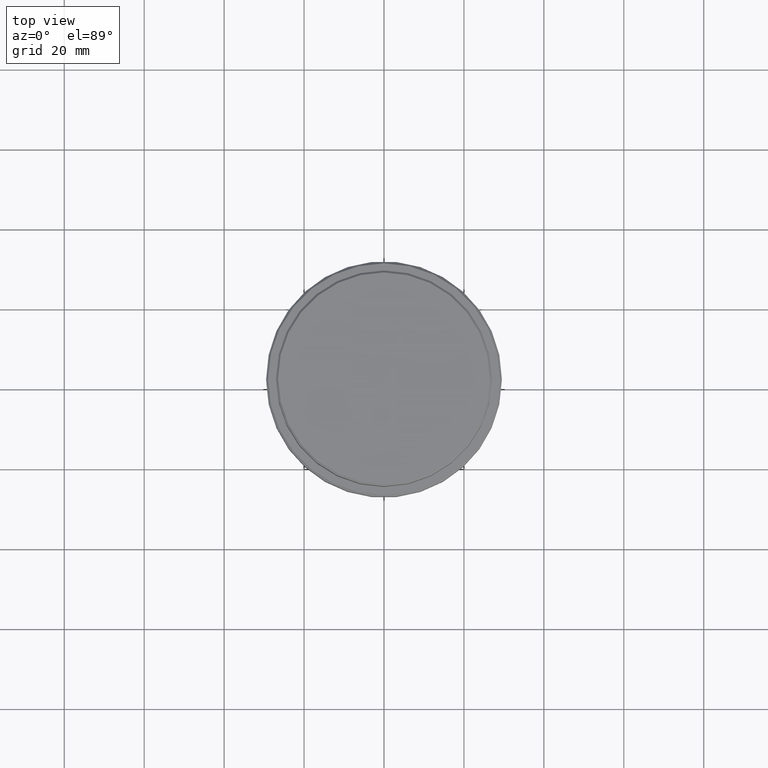
[diagram: clean part render]
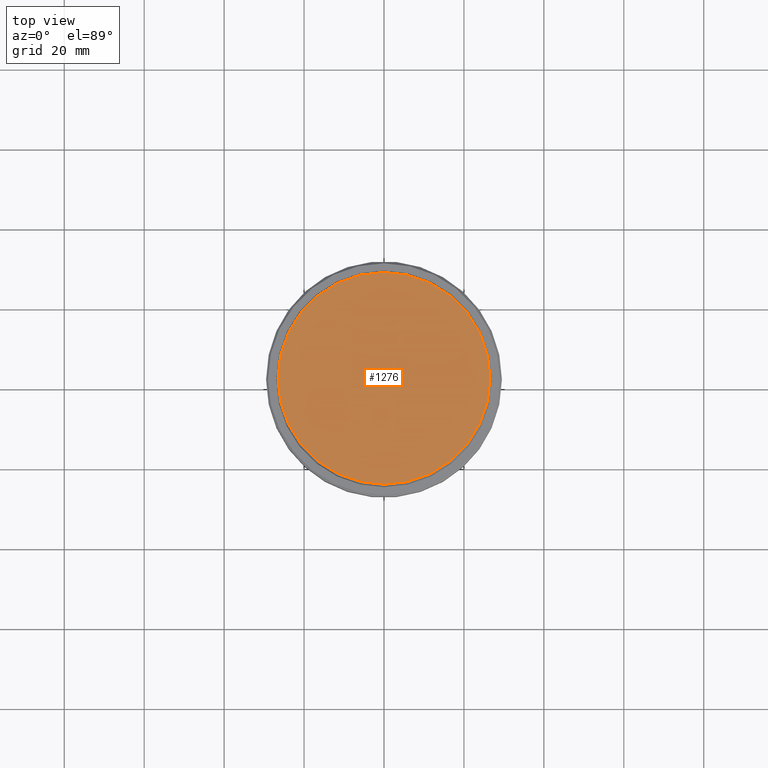
[diagram: same view with one face highlighted and labeled with its STEP entity id]
A machine part, top view. The second image highlights one B-rep face of the part: STEP entity #1276.
In plain terms, the highlighted planar face has unit normal (0, -0, 1).
Its self-contained STEP definition (entity closure, byte-faithful):
#44 = VERTEX_POINT ( 'NONE', #1341 ) ;
#108 = ORIENTED_EDGE ( 'NONE', *, *, #992, .T. ) ;
#148 = VERTEX_POINT ( 'NONE', #694 ) ;
#171 = AXIS2_PLACEMENT_3D ( 'NONE', #247, #539, #673 ) ;
#247 = CARTESIAN_POINT ( 'NONE',  ( 0.000000000000000000, 0.000000000000000000, 0.000000000000000000 ) ) ;
#299 = AXIS2_PLACEMENT_3D ( 'NONE', #621, #733, #640 ) ;
#354 = EDGE_CURVE ( 'NONE', #148, #44, #878, .T. ) ;
#504 = DIRECTION ( 'NONE',  ( 1.000000000000000000, 0.000000000000000000, 0.000000000000000000 ) ) ;
#539 = DIRECTION ( 'NONE',  ( -0.000000000000000000, -0.000000000000000000, 1.000000000000000000 ) ) ;
#621 = CARTESIAN_POINT ( 'NONE',  ( 0.000000000000000000, 0.000000000000000000, 0.000000000000000000 ) ) ;
#640 = DIRECTION ( 'NONE',  ( 1.000000000000000000, 0.000000000000000000, 0.000000000000000000 ) ) ;
#673 = DIRECTION ( 'NONE',  ( 1.000000000000000000, 0.000000000000000000, 0.000000000000000000 ) ) ;
#694 = CARTESIAN_POINT ( 'NONE',  ( 26.50000000000002487, 3.275930187719171524E-15, 0.000000000000000000 ) ) ;
#728 = CARTESIAN_POINT ( 'NONE',  ( 0.000000000000000000, 0.000000000000000000, 0.000000000000000000 ) ) ;
#733 = DIRECTION ( 'NONE',  ( -0.000000000000000000, -0.000000000000000000, 1.000000000000000000 ) ) ;
#848 = EDGE_LOOP ( 'NONE', ( #108, #1399 ) ) ;
#878 = CIRCLE ( 'NONE', #299, 26.50000000000002487 ) ;
#933 = DIRECTION ( 'NONE',  ( 0.000000000000000000, -0.000000000000000000, 1.000000000000000000 ) ) ;
#955 = FACE_OUTER_BOUND ( 'NONE', #848, .T. ) ;
#992 = EDGE_CURVE ( 'NONE', #44, #148, #1239, .T. ) ;
#1239 = CIRCLE ( 'NONE', #171, 26.50000000000002487 ) ;
#1269 = AXIS2_PLACEMENT_3D ( 'NONE', #728, #933, #504 ) ;
#1275 = PLANE ( 'NONE',  #1269 ) ;
#1276 = ADVANCED_FACE ( 'NONE', ( #955 ), #1275, .T. ) ;
#1341 = CARTESIAN_POINT ( 'NONE',  ( -26.50000000000002487, 0.000000000000000000, 0.000000000000000000 ) ) ;
#1399 = ORIENTED_EDGE ( 'NONE', *, *, #354, .T. ) ;